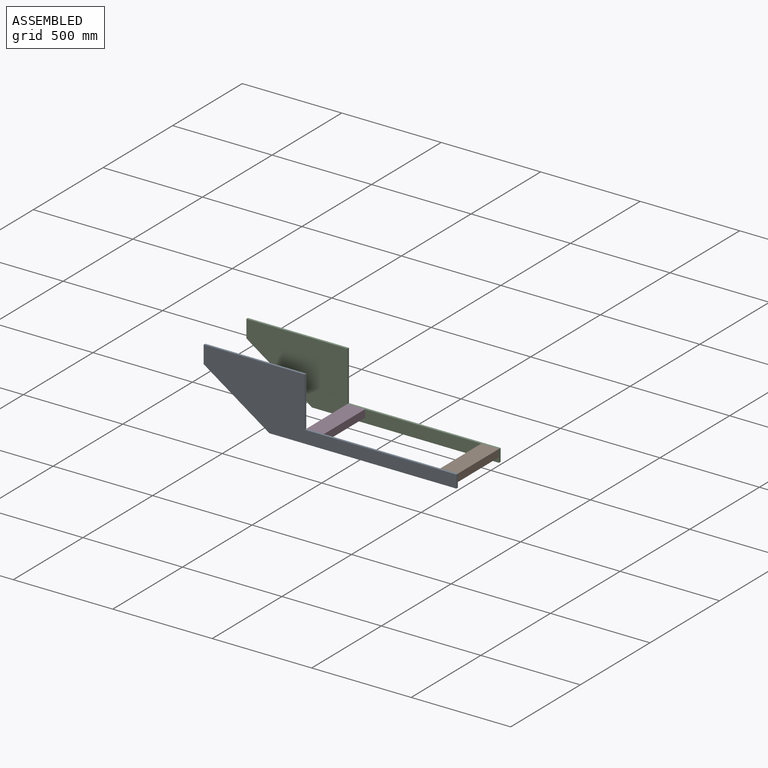
[diagram: assembled view]
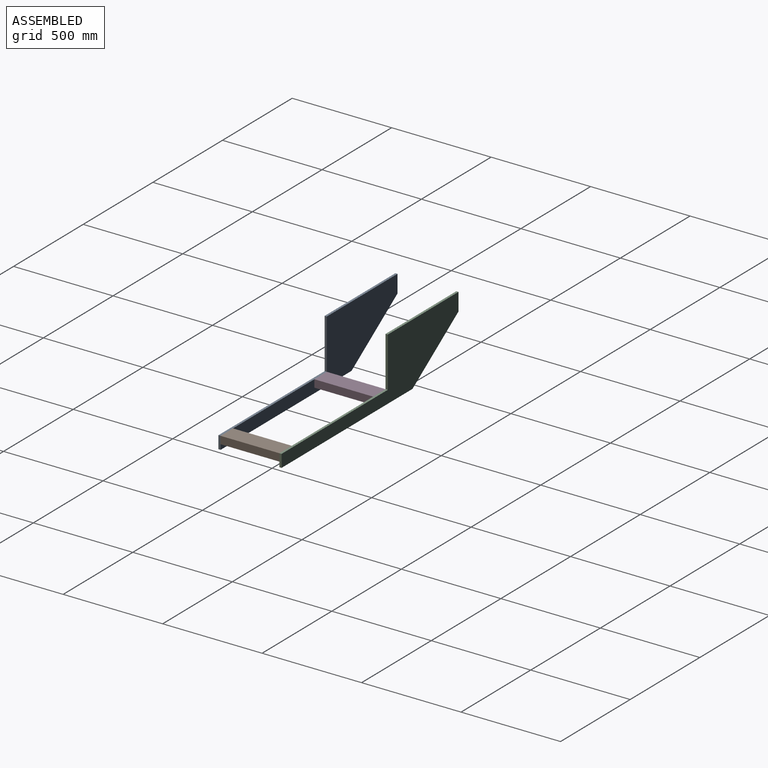
[diagram: assembled view, second angle]
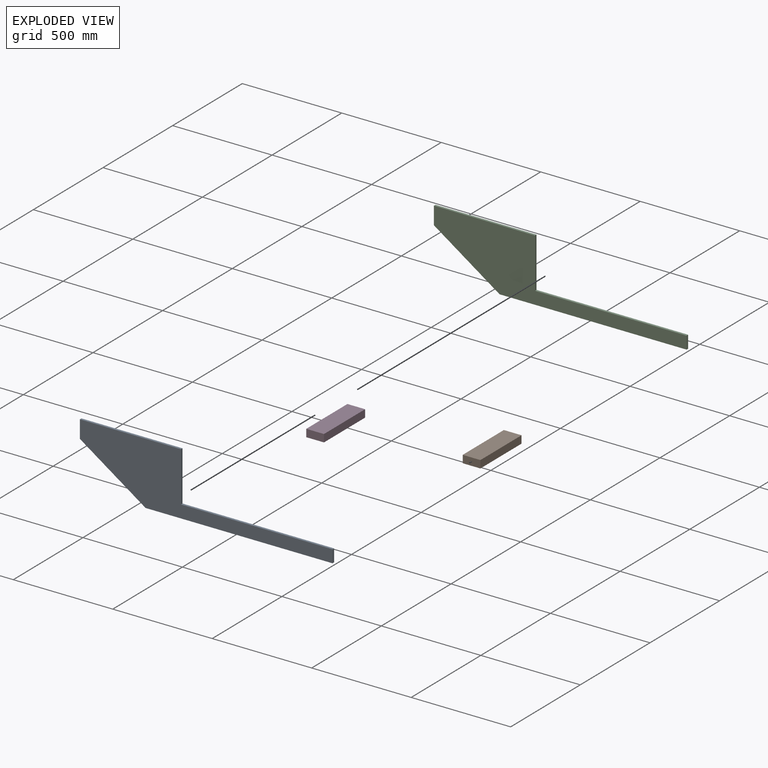
[diagram: exploded view]
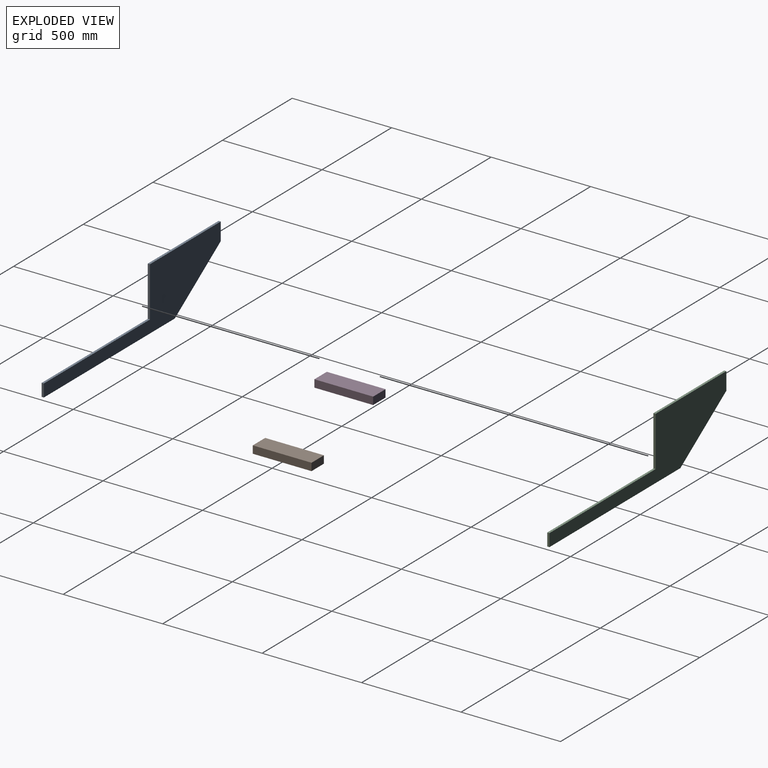
[diagram: exploded view, second angle]
ASSEMBLY  parts=4 mates=3
PART A: 9 faces, bbox 1270x11.1x314.5 mm
  f0: plane 250.95x11.11mm, normal (1,0,0), area 2788.7mm2, adj f1,f6,f7,f8
  f1: plane 508x11.11mm, normal (0,0,1), area 5645.2mm2, adj f0,f2,f7,f8
  f2: plane 88.9x11.11mm, normal (-1,0,0), area 987.9mm2, adj f1,f3,f7,f8
  f3: plane 330.2x225.55mm, normal (-0.56,0,-0.83), area 4443.7mm2, adj f2,f4,f7,f8
  f4: plane 939.8x11.11mm, normal (0,0,-1), area 10443.5mm2, adj f3,f5,f7,f8
  f5: plane 63.5x11.11mm, normal (1,0,0), area 705.6mm2, adj f4,f6,f7,f8
  f6: plane 762x11.11mm, normal (0,0,1), area 8467.7mm2, adj f0,f5,f7,f8
  f7: plane 1270x314.45mm, normal (0,-1,0), area 170890mm2, adj f0,f1,f2,f3,f4,f5,f6
  f8: plane 1270x314.45mm, normal (0,1,0), area 170890mm2, adj f0,f1,f2,f3,f4,f5,f6
PART B: 6 faces, bbox 38.1x295.3x88.9 mm
  f0: plane 295.28x88.9mm, normal (1,0,0), area 26249.9mm2, adj f1,f3,f4,f5
  f1: plane 295.28x38.1mm, normal (0,0,1), area 11250mm2, adj f0,f2,f4,f5
  f2: plane 295.28x88.9mm, normal (-1,0,0), area 26249.9mm2, adj f1,f3,f4,f5
  f3: plane 295.28x38.1mm, normal (0,0,-1), area 11250mm2, adj f0,f2,f4,f5
  f4: plane 88.9x38.1mm, normal (0,-1,0), area 3387.1mm2, adj f0,f1,f2,f3
  f5: plane 88.9x38.1mm, normal (0,1,0), area 3387.1mm2, adj f0,f1,f2,f3
PART C: same geometry as A
PART D: same geometry as B
PLACE A t=(-251.59,-251.26,213.35)mm
PLACE B rot(axis=(0,1,0),90deg) t=(465.96,-103.62,194.3)mm
PLACE C t=(-251.59,55.13,213.35)mm
PLACE D rot(axis=(0,1,0),90deg) t=(-207.14,-103.62,194.3)mm
MATE fastened A.f8 <-> B.f4  axis (0,1,0) through (510.41,-251.26,213.35)mm
MATE fastened D.f4 <-> A.f8  axis (0,-1,0) through (-251.59,-251.26,213.35)mm
MATE fastened B.f5 <-> C.f7  axis (0,1,0) through (510.41,44.02,213.35)mm
